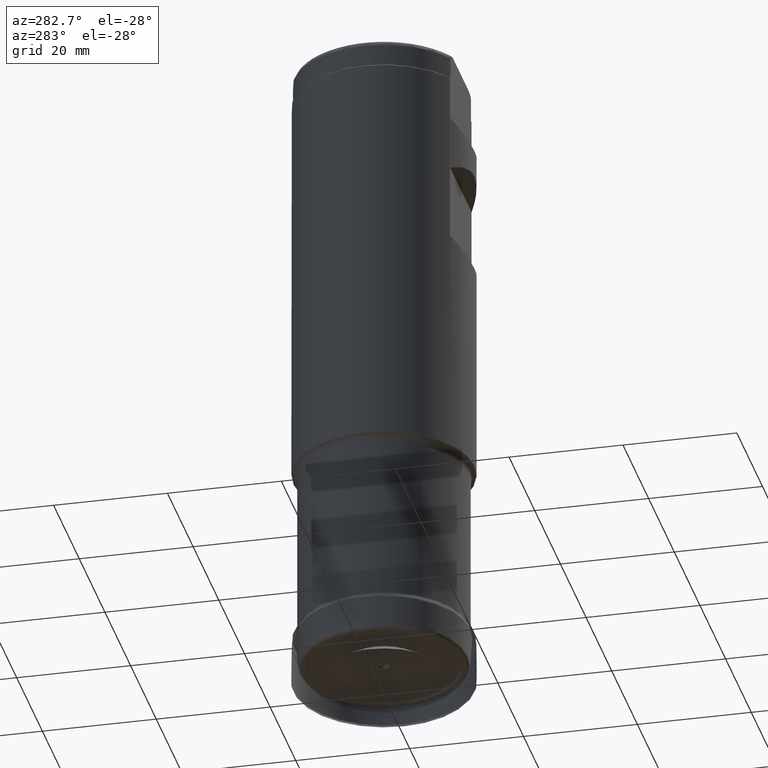
[diagram: clean part render]
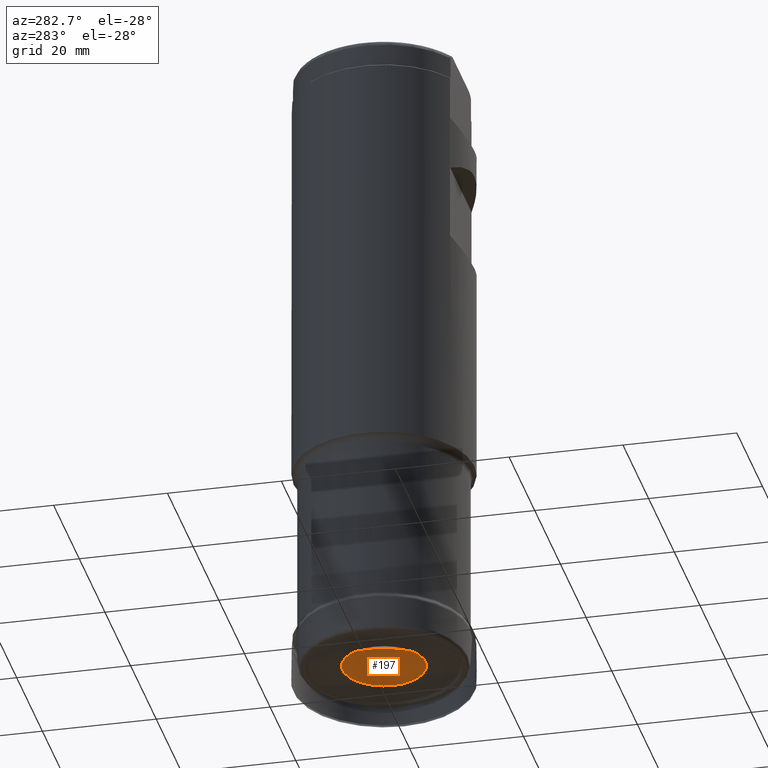
[diagram: same view with one face highlighted and labeled with its STEP entity id]
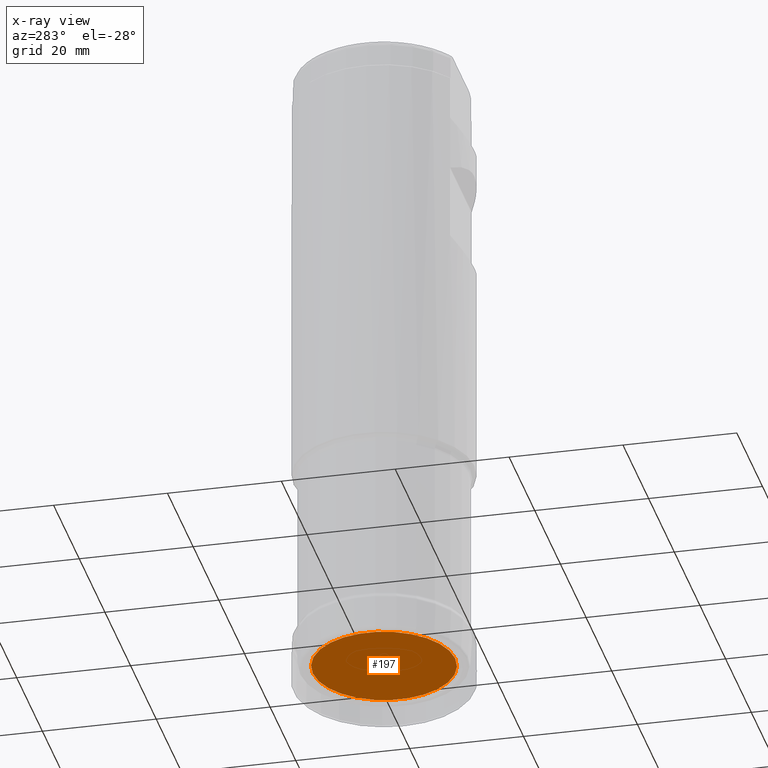
[diagram: x-ray of the same camera — body ghosted, the highlighted face saturated]
A machine part, auxiliary view. The second image highlights one B-rep face of the part: STEP entity #197.
The next image is the same camera in x-ray: the body ghosted, the highlighted face saturated — about 0% of this face is hidden behind the body in this view.
In plain terms, the highlighted planar face has unit normal (0, -0, -1).
Its self-contained STEP definition (entity closure, byte-faithful):
#174=PLANE('',#861);
#197=ADVANCED_FACE('',(#304,#305),#174,.T.);
#260=CIRCLE('',#859,1.);
#261=CIRCLE('',#860,12.5090813011338);
#304=FACE_BOUND('',#394,.T.);
#305=FACE_BOUND('',#395,.T.);
#394=EDGE_LOOP('',(#541));
#395=EDGE_LOOP('',(#542));
#541=ORIENTED_EDGE('',*,*,#742,.T.);
#542=ORIENTED_EDGE('',*,*,#743,.T.);
#675=VERTEX_POINT('',#1495);
#676=VERTEX_POINT('',#1497);
#742=EDGE_CURVE('',#675,#675,#260,.T.);
#743=EDGE_CURVE('',#676,#676,#261,.T.);
#859=AXIS2_PLACEMENT_3D('',#1494,#961,#962);
#860=AXIS2_PLACEMENT_3D('',#1496,#963,#964);
#861=AXIS2_PLACEMENT_3D('',#1498,#965,#966);
#961=DIRECTION('',(0.,1.17145536458252E-15,1.));
#962=DIRECTION('',(0.,-1.,1.0842021724855E-15));
#963=DIRECTION('',(0.,-1.17145536458252E-15,-1.));
#964=DIRECTION('',(0.,1.,-1.17875559290405E-15));
#965=DIRECTION('',(0.,-1.17145536458252E-15,-1.));
#966=DIRECTION('',(0.,1.,-1.17137202715334E-15));
#1494=CARTESIAN_POINT('',(0.,1.28860090104078E-15,1.1));
#1495=CARTESIAN_POINT('',(0.,-0.999999999999999,1.1));
#1496=CARTESIAN_POINT('',(0.,1.28860090104078E-15,1.1));
#1497=CARTESIAN_POINT('',(0.,12.5090813011338,1.09999999999999));
#1498=CARTESIAN_POINT('',(13.1288852038523,1.28860090104078E-15,1.1));